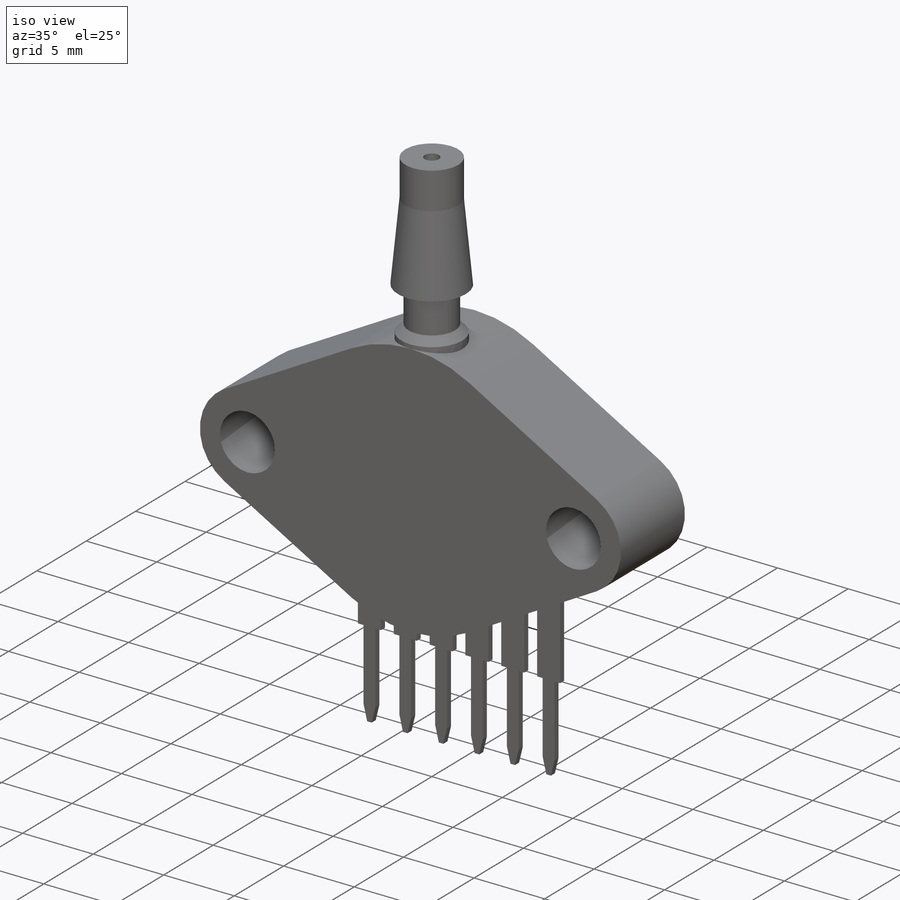
[diagram: iso view]
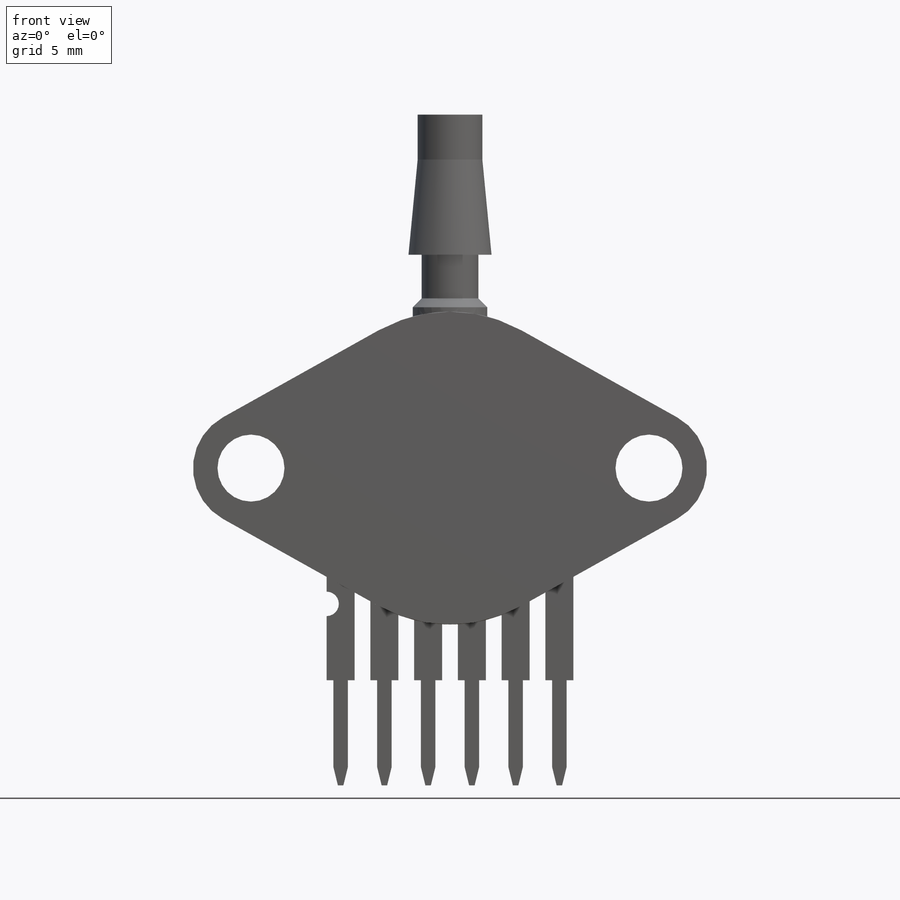
[diagram: front view]
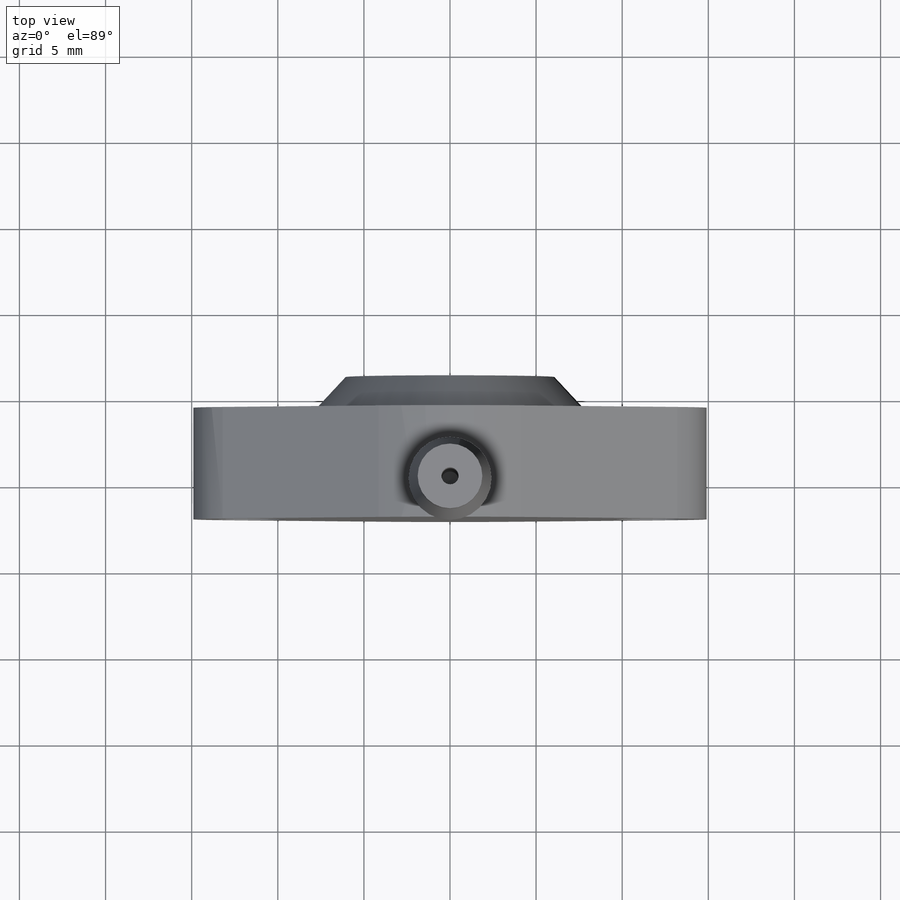
[diagram: top view]
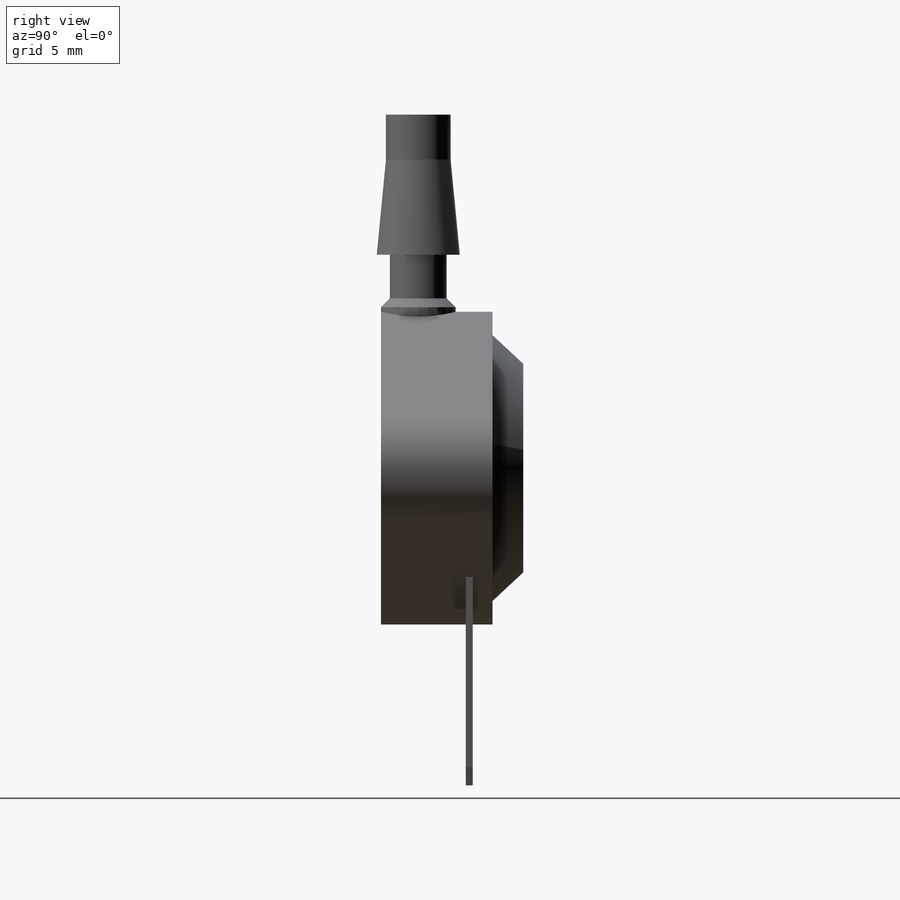
[diagram: right view]
SOLIDWORKS PART (.sldprt)
format: sldprt  version: not decoded by parser v0  size: 882,688 bytes
history: native  units: mm
features: sketch x9, extrude x2, material x1, cut_extrude x1, cut_revolve x1, revolve x1, hole x1 (+14 scaffold rows collapsed)
feature tree (30):
  scaffold x14  (default folders/planes/origin — collapsed)
  material  "Material <not specified>"
  sketch  "Sketch1"  dims[c1.D6=3.89mm c1.D8=3.89mm c1.D9=~3.158322mm c1.D1=2.54mm c1.D2=1.63mm c1.D3=0.84mm c1.D4=6.1mm c1.D5=18.42mm c1.D7=18.16mm c2.D8=23.11mm c2.D9=29.85mm]
  sketch  "Sketch2"  dims[c1.D1=6.095mm c1.D2=8.26mm c1.D3=~3.756071mm c1.D4=11.18mm c1.D5=18.16mm c1.D6=0.41mm c2.D5=18.16mm]
  sketch  "Sketch7"  dims[D1=0.0mm D2=0.0mm D3=0.0mm]
  sketch  "Sketch4"  dims[D1=0.0mm]
  extrude  "Extrude6"  [1 undecoded]
  cut_extrude  "Extrude7"  [1 undecoded]
  sketch  "Sketch3"  dims[D1=0.0mm D2=0.0mm D3=0.0mm]
  extrude  "Extrude1"  [1 undecoded]
  sketch  "Sketch5"  dims[D1=10.0mm]
  cut_revolve  "Cut-Revolve1"  Angle=360deg
  sketch  "Sketch8"
  revolve  "Revolve1"  Angle=360deg
  hole  "Ø1.0 (1) Diameter Hole1"  Diameter=1mm Depth=13.97mm
  sketch  "3DSketch1"
  sketch  "Sketch9"  dims[hole-wizard template sketch: 47 standard entries collapsed; hole parameters kept: c15.Hole Depth=13.97mm c15.D3=~14.816244mm c15.Drill Angle=118.0deg]
decode coverage: 10 of 15 modeling features carry decoded parameters
note: ~ marks probable driven/reference dimensions
note: 3 parameter values undecoded
summary: no parameter record found for 3 features
note: suppression state not decoded; provenance and decode notes live in map.json
